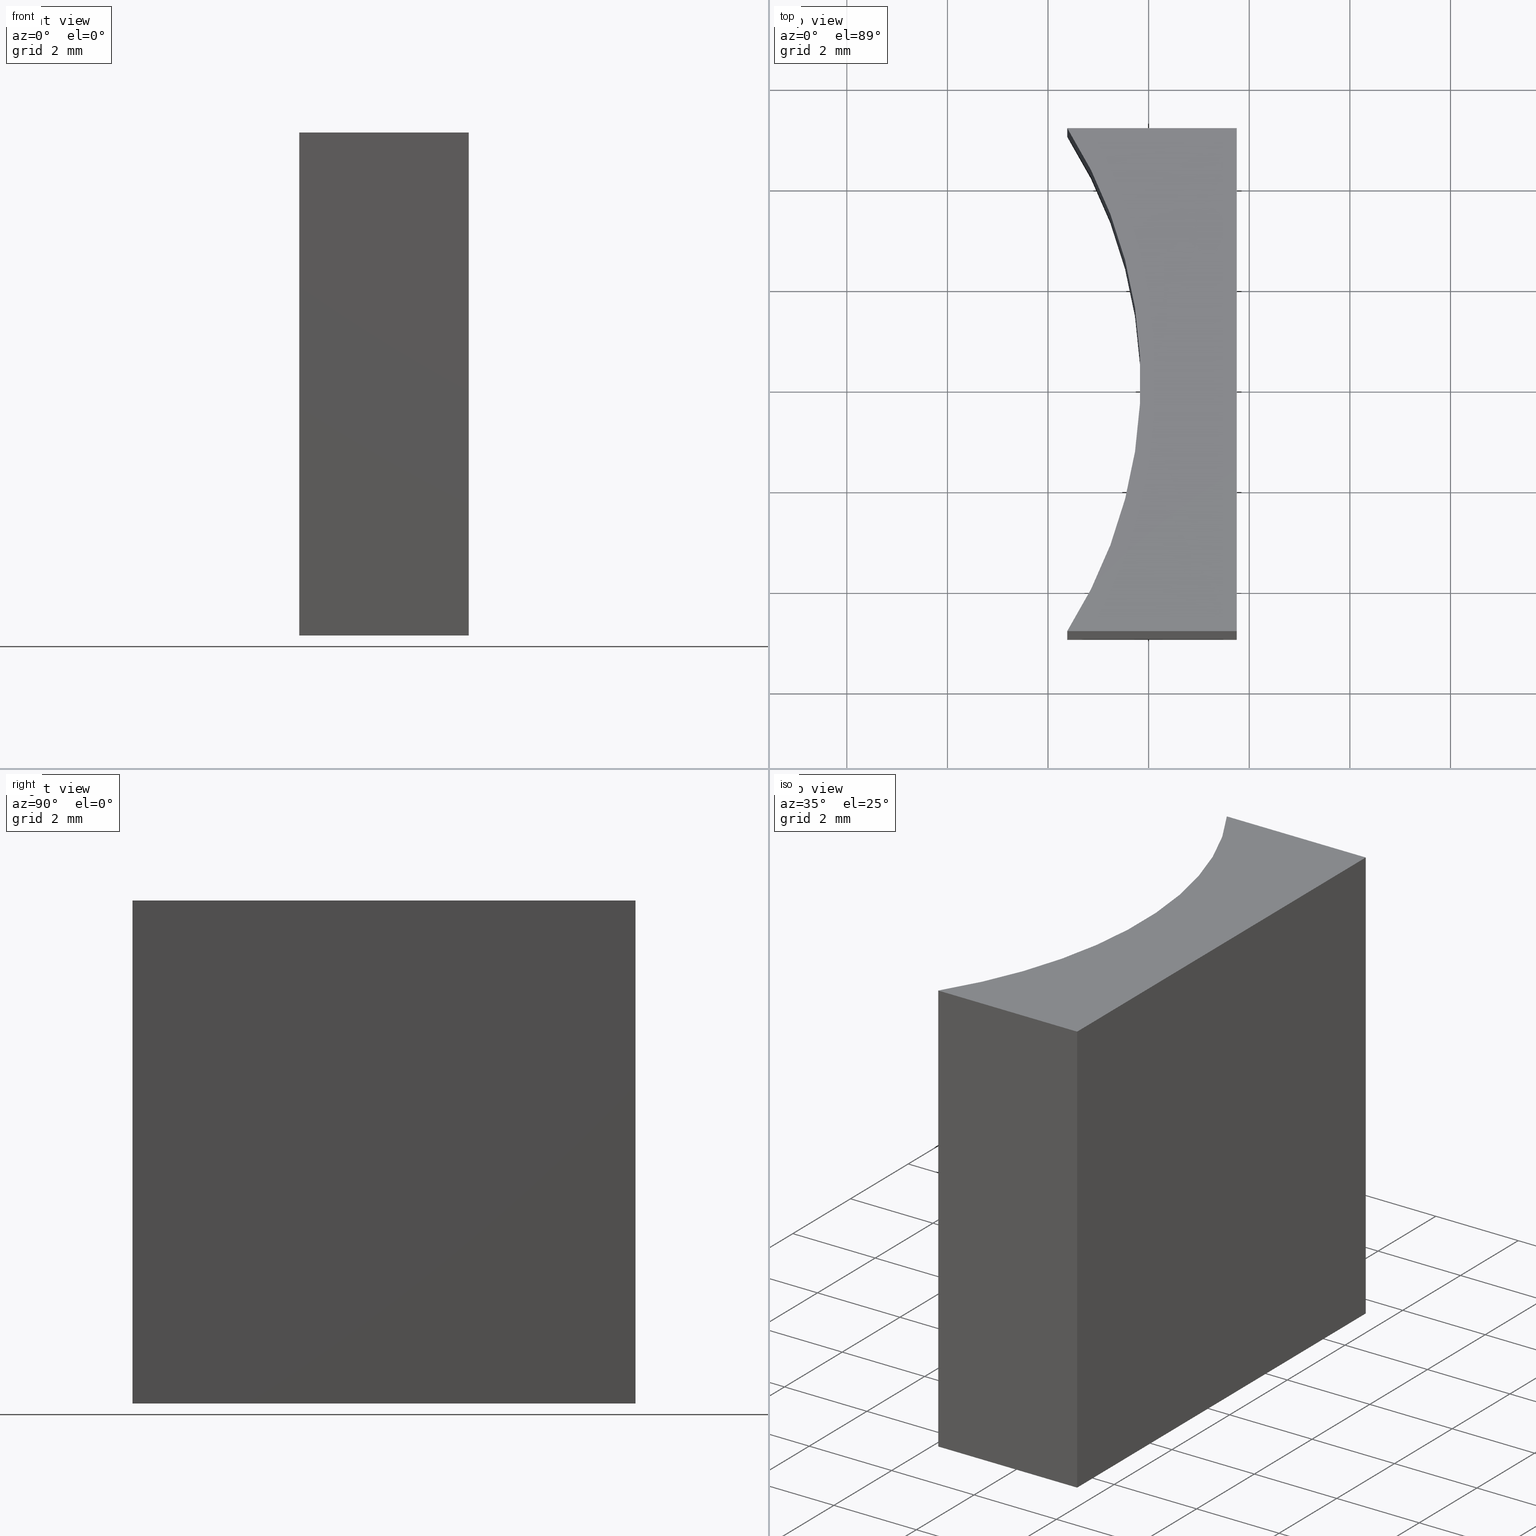
[diagram: canonical four-view strip — front | top / right | iso, engineering-drawing reading convention]
A machine part, canonical four-view strip (front | top / right | iso — engineering-drawing reading convention). The complete STEP part file that produces these views, byte-faithful:
ISO-10303-21;
HEADER;
FILE_DESCRIPTION (( 'STEP AP203' ),
    '1' );
FILE_NAME ('155565.STEP',
    '2024-05-13T04:00:14',
    ( '' ),
    ( '' ),
    'SwSTEP 2.0',
    'SolidWorks 2020',
    '' );
FILE_SCHEMA (( 'CONFIG_CONTROL_DESIGN' ));
ENDSEC;

DATA;
#1 = PLANE ( 'NONE',  #210 ) ;
#2 = LINE ( 'NONE', #218, #190 ) ;
#3 = DATE_AND_TIME ( #97, #104 ) ;
#4 = PRODUCT_DEFINITION_FORMATION_WITH_SPECIFIED_SOURCE ( '�κ�', '', #34, .NOT_KNOWN. ) ;
#5 = EDGE_CURVE ( 'NONE', #237, #176, #94, .T. ) ;
#6 = FACE_OUTER_BOUND ( 'NONE', #232, .T. ) ;
#7 = EDGE_CURVE ( 'NONE', #90, #237, #205, .T. ) ;
#8 = PRODUCT_DEFINITION_SHAPE ( 'NONE', 'NONE',  #235 ) ;
#9 = CARTESIAN_POINT ( 'NONE',  ( -3.618624628560199508, -4.927980699070814374, 10.00000000000000000 ) ) ;
#10 = PERSON_AND_ORGANIZATION ( #196, #234 ) ;
#11 = VECTOR ( 'NONE', #217, 1000.000000000000000 ) ;
#12 = DIRECTION ( 'NONE',  ( 1.000000000000000000, 0.000000000000000000, 0.000000000000000000 ) ) ;
#13 = VERTEX_POINT ( 'NONE', #197 ) ;
#14 = CC_DESIGN_DATE_AND_TIME_ASSIGNMENT ( #114, #70, ( #235 ) ) ;
#15 = ADVANCED_FACE ( 'NONE', ( #63 ), #109, .T. ) ;
#16 = APPROVAL_PERSON_ORGANIZATION ( #101, #194, #102 ) ;
#17 = PLANE ( 'NONE',  #30 ) ;
#18 = ORIENTED_EDGE ( 'NONE', *, *, #173, .F. ) ;
#19 = CARTESIAN_POINT ( 'NONE',  ( -3.618624628560199508, -4.927980699070814374, 10.00000000000000000 ) ) ;
#20 = VERTEX_POINT ( 'NONE', #78 ) ;
#21 = ORIENTED_EDGE ( 'NONE', *, *, #72, .T. ) ;
#22 = DIRECTION ( 'NONE',  ( 0.000000000000000000, -1.000000000000000000, 0.000000000000000000 ) ) ;
#23 = ORIENTED_EDGE ( 'NONE', *, *, #208, .T. ) ;
#24 = EDGE_CURVE ( 'NONE', #176, #13, #108, .T. ) ;
#25 = ADVANCED_FACE ( 'NONE', ( #106 ), #185, .F. ) ;
#26 = DIRECTION ( 'NONE',  ( 0.000000000000000000, 0.000000000000000000, 1.000000000000000000 ) ) ;
#27 = DATE_AND_TIME ( #225, #219 ) ;
#28 = DIRECTION ( 'NONE',  ( -1.192622389734054877E-16, 1.000000000000000000, -0.000000000000000000 ) ) ;
#29 = MECHANICAL_CONTEXT ( 'NONE', #172, 'mechanical' ) ;
#30 = AXIS2_PLACEMENT_3D ( 'NONE', #182, #99, #89 ) ;
#31 = CALENDAR_DATE ( 2024, 13, 5 ) ;
#32 = ORIENTED_EDGE ( 'NONE', *, *, #33, .T. ) ;
#33 = EDGE_CURVE ( 'NONE', #13, #20, #80, .T. ) ;
#34 = PRODUCT ( '155565', '155565', '', ( #29 ) ) ;
#35 = CC_DESIGN_SECURITY_CLASSIFICATION ( #146, ( #4 ) ) ;
#36 = PERSON_AND_ORGANIZATION ( #196, #234 ) ;
#37 = VERTEX_POINT ( 'NONE', #201 ) ;
#38 = CARTESIAN_POINT ( 'NONE',  ( -11.46018059660633703, 0.07201930092918462645, 10.00000000000000000 ) ) ;
#39 = DIRECTION ( 'NONE',  ( 1.000000000000000000, 0.000000000000000000, -0.000000000000000000 ) ) ;
#40 = DIRECTION ( 'NONE',  ( -0.000000000000000000, -0.000000000000000000, -1.000000000000000000 ) ) ;
#41 = ORIENTED_EDGE ( 'NONE', *, *, #129, .T. ) ;
#42 = ORIENTED_EDGE ( 'NONE', *, *, #24, .F. ) ;
#43 = LINE ( 'NONE', #126, #11 ) ;
#44 = PERSON_AND_ORGANIZATION ( #196, #234 ) ;
#45 = DIRECTION ( 'NONE',  ( -0.000000000000000000, -0.000000000000000000, -1.000000000000000000 ) ) ;
#46 = PERSON_AND_ORGANIZATION_ROLE ( 'design_supplier' ) ;
#47 = LOCAL_TIME ( 12, 0, 14.00000000000000000, #170 ) ;
#48 = APPLICATION_CONTEXT ( 'configuration controlled 3d designs of mechanical parts and assemblies' ) ;
#49 = APPROVAL_STATUS ( 'not_yet_approved' ) ;
#50 = DIRECTION ( 'NONE',  ( 1.000000000000000000, 0.000000000000000000, 0.000000000000000000 ) ) ;
#51 = FACE_OUTER_BOUND ( 'NONE', #127, .T. ) ;
#52 = APPROVAL ( #115, 'δָ��' ) ;
#53 = ADVANCED_FACE ( 'NONE', ( #236 ), #1, .F. ) ;
#54 = ORIENTED_EDGE ( 'NONE', *, *, #175, .T. ) ;
#55 = EDGE_LOOP ( 'NONE', ( #21, #198, #119, #144 ) ) ;
#56 = LINE ( 'NONE', #215, #93 ) ;
#57 = ORIENTED_EDGE ( 'NONE', *, *, #72, .F. ) ;
#58 = EDGE_LOOP ( 'NONE', ( #79, #87, #128, #92 ) ) ;
#59 = LINE ( 'NONE', #125, #179 ) ;
#60 = CC_DESIGN_PERSON_AND_ORGANIZATION_ASSIGNMENT ( #227, #151, ( #34 ) ) ;
#61 = CARTESIAN_POINT ( 'NONE',  ( -3.618624628560200840, 5.072019300929185626, 10.00000000000000000 ) ) ;
#62 = ADVANCED_FACE ( 'NONE', ( #143 ), #17, .F. ) ;
#63 = FACE_OUTER_BOUND ( 'NONE', #239, .T. ) ;
#64 =( LENGTH_UNIT ( ) NAMED_UNIT ( * ) SI_UNIT ( .MILLI., .METRE. ) );
#65 = LINE ( 'NONE', #132, #105 ) ;
#66 = SECURITY_CLASSIFICATION_LEVEL ( 'unclassified' ) ;
#67 = PERSON_AND_ORGANIZATION ( #196, #234 ) ;
#68 = DATE_TIME_ROLE ( 'classification_date' ) ;
#69 = VECTOR ( 'NONE', #142, 1000.000000000000000 ) ;
#70 = DATE_TIME_ROLE ( 'creation_date' ) ;
#71 = CARTESIAN_POINT ( 'NONE',  ( -3.618624628560199508, -4.927980699070814374, 0.000000000000000000 ) ) ;
#72 = EDGE_CURVE ( 'NONE', #20, #37, #2, .T. ) ;
#73 = CC_DESIGN_APPROVAL ( #194, ( #235 ) ) ;
#74 = AXIS2_PLACEMENT_3D ( 'NONE', #180, #26, #96 ) ;
#75 = APPROVAL ( #154, 'δָ��' ) ;
#76 = DIRECTION ( 'NONE',  ( -0.000000000000000000, -0.000000000000000000, -1.000000000000000000 ) ) ;
#77 = DIRECTION ( 'NONE',  ( 0.000000000000000000, 0.000000000000000000, 1.000000000000000000 ) ) ;
#78 = CARTESIAN_POINT ( 'NONE',  ( -0.2486246285602006501, 5.072019300929185626, 0.000000000000000000 ) ) ;
#79 = ORIENTED_EDGE ( 'NONE', *, *, #24, .T. ) ;
#80 = LINE ( 'NONE', #145, #69 ) ;
#81 = VERTEX_POINT ( 'NONE', #140 ) ;
#82 = CARTESIAN_POINT ( 'NONE',  ( -3.618624628560199508, -4.927980699070814374, 10.00000000000000000 ) ) ;
#83 = PERSON_AND_ORGANIZATION ( #196, #234 ) ;
#84 = APPROVAL_DATE_TIME ( #131, #194 ) ;
#85 = COORDINATED_UNIVERSAL_TIME_OFFSET ( 8, 0, .AHEAD. ) ;
#86 = PERSON_AND_ORGANIZATION_ROLE ( 'creator' ) ;
#87 = ORIENTED_EDGE ( 'NONE', *, *, #208, .F. ) ;
#88 = VECTOR ( 'NONE', #112, 1000.000000000000000 ) ;
#89 = DIRECTION ( 'NONE',  ( 0.000000000000000000, -0.000000000000000000, 1.000000000000000000 ) ) ;
#90 = VERTEX_POINT ( 'NONE', #61 ) ;
#91 = DIRECTION ( 'NONE',  ( -1.000000000000000000, -0.000000000000000000, -0.000000000000000000 ) ) ;
#92 = ORIENTED_EDGE ( 'NONE', *, *, #5, .T. ) ;
#93 = VECTOR ( 'NONE', #220, 1000.000000000000000 ) ;
#94 = LINE ( 'NONE', #19, #177 ) ;
#95 = ORIENTED_EDGE ( 'NONE', *, *, #33, .F. ) ;
#96 = DIRECTION ( 'NONE',  ( 1.000000000000000000, 0.000000000000000000, -0.000000000000000000 ) ) ;
#97 = CALENDAR_DATE ( 2024, 13, 5 ) ;
#98 = ORIENTED_EDGE ( 'NONE', *, *, #113, .F. ) ;
#99 = DIRECTION ( 'NONE',  ( 0.000000000000000000, 1.000000000000000000, 0.000000000000000000 ) ) ;
#100 = APPROVAL_ROLE ( '' ) ;
#101 = PERSON_AND_ORGANIZATION ( #196, #234 ) ;
#102 = APPROVAL_ROLE ( '' ) ;
#103 = EDGE_CURVE ( 'NONE', #90, #37, #56, .T. ) ;
#104 = LOCAL_TIME ( 12, 0, 14.00000000000000000, #228 ) ;
#105 = VECTOR ( 'NONE', #150, 1000.000000000000000 ) ;
#106 = FACE_OUTER_BOUND ( 'NONE', #192, .T. ) ;
#107 = DIRECTION ( 'NONE',  ( -1.000000000000000000, 0.000000000000000000, 0.000000000000000000 ) ) ;
#108 = LINE ( 'NONE', #165, #238 ) ;
#109 = PLANE ( 'NONE',  #200 ) ;
#110 = CALENDAR_DATE ( 2024, 13, 5 ) ;
#111 = ORIENTED_EDGE ( 'NONE', *, *, #212, .T. ) ;
#112 = DIRECTION ( 'NONE',  ( -1.000000000000000000, -0.000000000000000000, -0.000000000000000000 ) ) ;
#113 = EDGE_CURVE ( 'NONE', #81, #20, #43, .T. ) ;
#114 = DATE_AND_TIME ( #202, #47 ) ;
#115 = APPROVAL_STATUS ( 'not_yet_approved' ) ;
#116 = DIRECTION ( 'NONE',  ( 0.000000000000000000, 0.000000000000000000, 1.000000000000000000 ) ) ;
#117 = CARTESIAN_POINT ( 'NONE',  ( -0.2486246285602006501, 5.072019300929185626, 10.00000000000000000 ) ) ;
#118 = CC_DESIGN_APPROVAL ( #52, ( #4 ) ) ;
#119 = ORIENTED_EDGE ( 'NONE', *, *, #129, .F. ) ;
#120 = VECTOR ( 'NONE', #12, 1000.000000000000000 ) ;
#121 = CC_DESIGN_PERSON_AND_ORGANIZATION_ASSIGNMENT ( #83, #46, ( #4 ) ) ;
#122 = DIRECTION ( 'NONE',  ( 1.000000000000000000, 0.000000000000000000, 0.000000000000000000 ) ) ;
#123 =( GEOMETRIC_REPRESENTATION_CONTEXT ( 3 ) GLOBAL_UNCERTAINTY_ASSIGNED_CONTEXT ( ( #231 ) ) GLOBAL_UNIT_ASSIGNED_CONTEXT ( ( #64, #155, #168 ) ) REPRESENTATION_CONTEXT ( 'NONE', 'WORKASPACE' ) );
#124 = CARTESIAN_POINT ( 'NONE',  ( -3.618624628560200840, 5.072019300929185626, 10.00000000000000000 ) ) ;
#125 = CARTESIAN_POINT ( 'NONE',  ( -0.2486246285602006501, 5.072019300929185626, 10.00000000000000000 ) ) ;
#126 = CARTESIAN_POINT ( 'NONE',  ( -0.2486246285602006501, 5.072019300929185626, 10.00000000000000000 ) ) ;
#127 = EDGE_LOOP ( 'NONE', ( #32, #98, #18, #23 ) ) ;
#128 = ORIENTED_EDGE ( 'NONE', *, *, #212, .F. ) ;
#129 = EDGE_CURVE ( 'NONE', #81, #90, #159, .T. ) ;
#130 = ADVANCED_FACE ( 'NONE', ( #6 ), #195, .F. ) ;
#131 = DATE_AND_TIME ( #31, #141 ) ;
#132 = CARTESIAN_POINT ( 'NONE',  ( -0.2486246285601994566, -4.927980699070814374, 10.00000000000000000 ) ) ;
#133 = PERSON_AND_ORGANIZATION ( #196, #234 ) ;
#134 = LINE ( 'NONE', #82, #120 ) ;
#135 = CC_DESIGN_APPROVAL ( #75, ( #146 ) ) ;
#136 = AXIS2_PLACEMENT_3D ( 'NONE', #117, #206, #169 ) ;
#137 = CC_DESIGN_PERSON_AND_ORGANIZATION_ASSIGNMENT ( #67, #86, ( #235 ) ) ;
#138 = PRODUCT_RELATED_PRODUCT_CATEGORY ( 'detail', '', ( #34 ) ) ;
#139 = AXIS2_PLACEMENT_3D ( 'NONE', #38, #76, #107 ) ;
#140 = CARTESIAN_POINT ( 'NONE',  ( -0.2486246285602006501, 5.072019300929185626, 10.00000000000000000 ) ) ;
#141 = LOCAL_TIME ( 12, 0, 14.00000000000000000, #189 ) ;
#142 = DIRECTION ( 'NONE',  ( -1.192622389734054877E-16, 1.000000000000000000, -0.000000000000000000 ) ) ;
#143 = FACE_OUTER_BOUND ( 'NONE', #58, .T. ) ;
#144 = ORIENTED_EDGE ( 'NONE', *, *, #113, .T. ) ;
#145 = CARTESIAN_POINT ( 'NONE',  ( -0.2486246285602006501, 5.072019300929185626, 0.000000000000000000 ) ) ;
#146 = SECURITY_CLASSIFICATION ( '', '', #66 ) ;
#147 = DIRECTION ( 'NONE',  ( 1.000000000000000000, 0.000000000000000000, 0.000000000000000000 ) ) ;
#148 = PERSON_AND_ORGANIZATION_ROLE ( 'classification_officer' ) ;
#149 = CLOSED_SHELL ( 'NONE', ( #130, #62, #213, #53, #15, #25 ) ) ;
#150 = DIRECTION ( 'NONE',  ( -0.000000000000000000, -0.000000000000000000, -1.000000000000000000 ) ) ;
#151 = PERSON_AND_ORGANIZATION_ROLE ( 'design_owner' ) ;
#152 = DESIGN_CONTEXT ( 'detailed design', #48, 'design' ) ;
#153 = PLANE ( 'NONE',  #136 ) ;
#154 = APPROVAL_STATUS ( 'not_yet_approved' ) ;
#155 =( NAMED_UNIT ( * ) PLANE_ANGLE_UNIT ( ) SI_UNIT ( $, .RADIAN. ) );
#156 = CC_DESIGN_DATE_AND_TIME_ASSIGNMENT ( #204, #68, ( #146 ) ) ;
#157 = AXIS2_PLACEMENT_3D ( 'NONE', #174, #116, #50 ) ;
#158 = SHAPE_DEFINITION_REPRESENTATION ( #8, #229 ) ;
#159 = LINE ( 'NONE', #124, #88 ) ;
#160 = DIRECTION ( 'NONE',  ( 0.000000000000000000, -0.000000000000000000, -1.000000000000000000 ) ) ;
#161 = ORIENTED_EDGE ( 'NONE', *, *, #173, .T. ) ;
#162 = AXIS2_PLACEMENT_3D ( 'NONE', #214, #186, #147 ) ;
#163 = ORIENTED_EDGE ( 'NONE', *, *, #175, .F. ) ;
#164 = CARTESIAN_POINT ( 'NONE',  ( -11.46018059660633703, 0.07201930092918462645, 10.00000000000000000 ) ) ;
#165 = CARTESIAN_POINT ( 'NONE',  ( -3.618624628560199508, -4.927980699070814374, 0.000000000000000000 ) ) ;
#166 = PERSON_AND_ORGANIZATION_ROLE ( 'creator' ) ;
#167 = CARTESIAN_POINT ( 'NONE',  ( -11.46018059660633703, 0.07201930092918462645, 0.000000000000000000 ) ) ;
#168 =( NAMED_UNIT ( * ) SI_UNIT ( $, .STERADIAN. ) SOLID_ANGLE_UNIT ( ) );
#169 = DIRECTION ( 'NONE',  ( 1.192622389734054877E-16, -1.000000000000000000, 0.000000000000000000 ) ) ;
#170 = COORDINATED_UNIVERSAL_TIME_OFFSET ( 8, 0, .AHEAD. ) ;
#171 = AXIS2_PLACEMENT_3D ( 'NONE', #167, #45, #224 ) ;
#172 = APPLICATION_CONTEXT ( 'configuration controlled 3d designs of mechanical parts and assemblies' ) ;
#173 = EDGE_CURVE ( 'NONE', #230, #81, #59, .T. ) ;
#174 = CARTESIAN_POINT ( 'NONE',  ( 0.000000000000000000, 0.000000000000000000, 0.000000000000000000 ) ) ;
#175 = EDGE_CURVE ( 'NONE', #37, #176, #226, .T. ) ;
#176 = VERTEX_POINT ( 'NONE', #71 ) ;
#177 = VECTOR ( 'NONE', #40, 1000.000000000000000 ) ;
#178 = LOCAL_TIME ( 12, 0, 14.00000000000000000, #85 ) ;
#179 = VECTOR ( 'NONE', #28, 1000.000000000000000 ) ;
#180 = CARTESIAN_POINT ( 'NONE',  ( -11.46018059660633703, 0.07201930092918462645, 0.000000000000000000 ) ) ;
#181 = ORIENTED_EDGE ( 'NONE', *, *, #7, .F. ) ;
#182 = CARTESIAN_POINT ( 'NONE',  ( -3.618624628560199508, -4.927980699070814374, 10.00000000000000000 ) ) ;
#183 = APPROVAL_DATE_TIME ( #27, #52 ) ;
#184 = CC_DESIGN_PERSON_AND_ORGANIZATION_ASSIGNMENT ( #44, #148, ( #146 ) ) ;
#185 = PLANE ( 'NONE',  #74 ) ;
#186 = DIRECTION ( 'NONE',  ( -0.000000000000000000, -0.000000000000000000, -1.000000000000000000 ) ) ;
#187 = COORDINATED_UNIVERSAL_TIME_OFFSET ( 8, 0, .AHEAD. ) ;
#188 = APPROVAL_PERSON_ORGANIZATION ( #133, #52, #100 ) ;
#189 = COORDINATED_UNIVERSAL_TIME_OFFSET ( 8, 0, .AHEAD. ) ;
#190 = VECTOR ( 'NONE', #91, 1000.000000000000000 ) ;
#191 = MANIFOLD_SOLID_BREP ( '͹̨-����1', #149 ) ;
#192 = EDGE_LOOP ( 'NONE', ( #163, #57, #95, #42 ) ) ;
#193 = CC_DESIGN_PERSON_AND_ORGANIZATION_ASSIGNMENT ( #36, #166, ( #4 ) ) ;
#194 = APPROVAL ( #49, 'δָ��' ) ;
#195 = CYLINDRICAL_SURFACE ( 'NONE', #139, 9.299999999999998934 ) ;
#196 = PERSON ( 'δָ��', 'δָ��', 'δָ��', ('δָ��'), ('δָ��'), ('δָ��') ) ;
#197 = CARTESIAN_POINT ( 'NONE',  ( -0.2486246285601994566, -4.927980699070814374, 0.000000000000000000 ) ) ;
#198 = ORIENTED_EDGE ( 'NONE', *, *, #103, .F. ) ;
#199 = CARTESIAN_POINT ( 'NONE',  ( -3.618624628560200840, 5.072019300929185626, 10.00000000000000000 ) ) ;
#200 = AXIS2_PLACEMENT_3D ( 'NONE', #164, #77, #39 ) ;
#201 = CARTESIAN_POINT ( 'NONE',  ( -3.618624628560200840, 5.072019300929185626, 0.000000000000000000 ) ) ;
#202 = CALENDAR_DATE ( 2024, 13, 5 ) ;
#203 = APPLICATION_PROTOCOL_DEFINITION ( 'international standard', 'config_control_design', 1994, #172 ) ;
#204 = DATE_AND_TIME ( #110, #178 ) ;
#205 = CIRCLE ( 'NONE', #162, 9.299999999999998934 ) ;
#206 = DIRECTION ( 'NONE',  ( -1.000000000000000000, -1.192622389734054877E-16, 0.000000000000000000 ) ) ;
#207 = CARTESIAN_POINT ( 'NONE',  ( -0.2486246285601994566, -4.927980699070814374, 10.00000000000000000 ) ) ;
#208 = EDGE_CURVE ( 'NONE', #230, #13, #65, .T. ) ;
#209 = APPROVAL_PERSON_ORGANIZATION ( #10, #75, #221 ) ;
#210 = AXIS2_PLACEMENT_3D ( 'NONE', #199, #22, #160 ) ;
#211 = ORIENTED_EDGE ( 'NONE', *, *, #7, .T. ) ;
#212 = EDGE_CURVE ( 'NONE', #237, #230, #134, .T. ) ;
#213 = ADVANCED_FACE ( 'NONE', ( #51 ), #153, .F. ) ;
#214 = CARTESIAN_POINT ( 'NONE',  ( -11.46018059660633703, 0.07201930092918462645, 10.00000000000000000 ) ) ;
#215 = CARTESIAN_POINT ( 'NONE',  ( -3.618624628560200840, 5.072019300929185626, 10.00000000000000000 ) ) ;
#216 = ORIENTED_EDGE ( 'NONE', *, *, #103, .T. ) ;
#217 = DIRECTION ( 'NONE',  ( -0.000000000000000000, -0.000000000000000000, -1.000000000000000000 ) ) ;
#218 = CARTESIAN_POINT ( 'NONE',  ( -3.618624628560200840, 5.072019300929185626, 0.000000000000000000 ) ) ;
#219 = LOCAL_TIME ( 12, 0, 14.00000000000000000, #187 ) ;
#220 = DIRECTION ( 'NONE',  ( -0.000000000000000000, -0.000000000000000000, -1.000000000000000000 ) ) ;
#221 = APPROVAL_ROLE ( '' ) ;
#222 = ORIENTED_EDGE ( 'NONE', *, *, #5, .F. ) ;
#223 = APPLICATION_PROTOCOL_DEFINITION ( 'international standard', 'config_control_design', 1994, #48 ) ;
#224 = DIRECTION ( 'NONE',  ( 1.000000000000000000, 0.000000000000000000, 0.000000000000000000 ) ) ;
#225 = CALENDAR_DATE ( 2024, 13, 5 ) ;
#226 = CIRCLE ( 'NONE', #171, 9.299999999999998934 ) ;
#227 = PERSON_AND_ORGANIZATION ( #196, #234 ) ;
#228 = COORDINATED_UNIVERSAL_TIME_OFFSET ( 8, 0, .AHEAD. ) ;
#229 = ADVANCED_BREP_SHAPE_REPRESENTATION ( '155565', ( #191, #157 ), #123 ) ;
#230 = VERTEX_POINT ( 'NONE', #207 ) ;
#231 = UNCERTAINTY_MEASURE_WITH_UNIT (LENGTH_MEASURE( 1.000000000000000082E-05 ), #64, 'distance_accuracy_value', 'NONE');
#232 = EDGE_LOOP ( 'NONE', ( #54, #222, #181, #216 ) ) ;
#233 = APPROVAL_DATE_TIME ( #3, #75 ) ;
#234 = ORGANIZATION ( 'δָ��', 'δָ��', '' ) ;
#235 = PRODUCT_DEFINITION ( 'δ֪', '', #4, #152 ) ;
#236 = FACE_OUTER_BOUND ( 'NONE', #55, .T. ) ;
#237 = VERTEX_POINT ( 'NONE', #9 ) ;
#238 = VECTOR ( 'NONE', #122, 1000.000000000000000 ) ;
#239 = EDGE_LOOP ( 'NONE', ( #211, #111, #161, #41 ) ) ;
ENDSEC;
END-ISO-10303-21;
